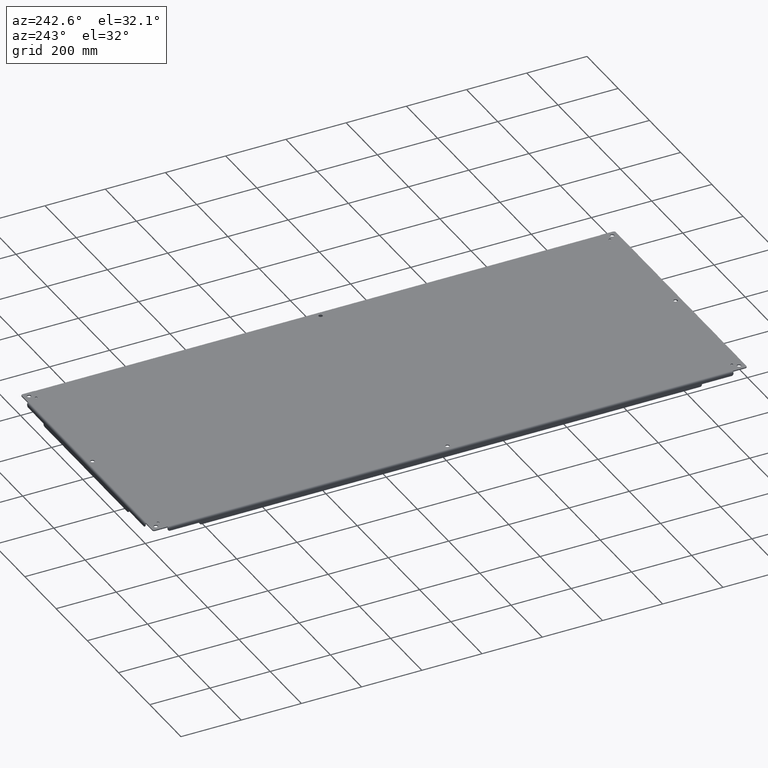
[diagram: clean part render]
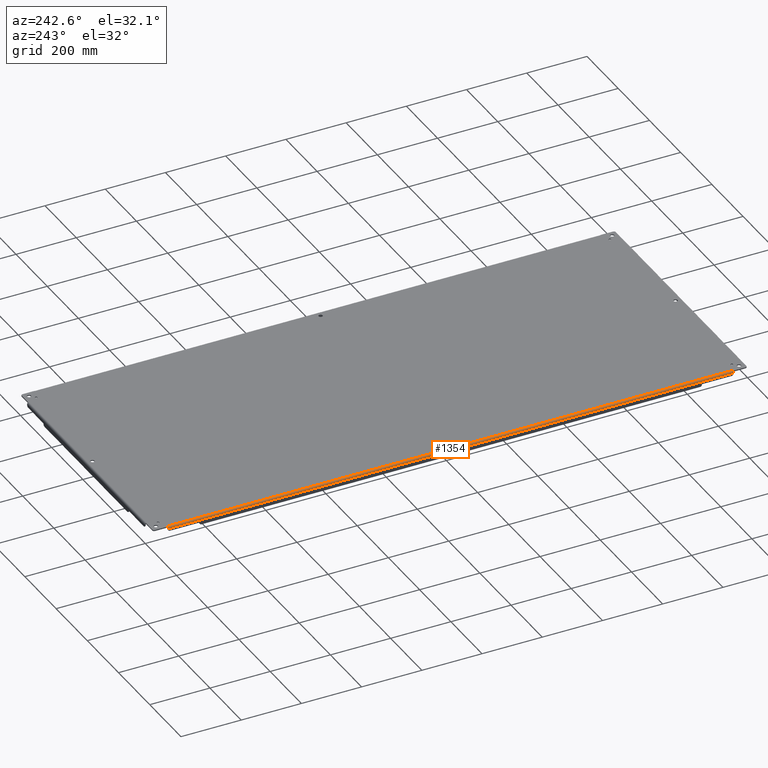
[diagram: same view with one face highlighted and labeled with its STEP entity id]
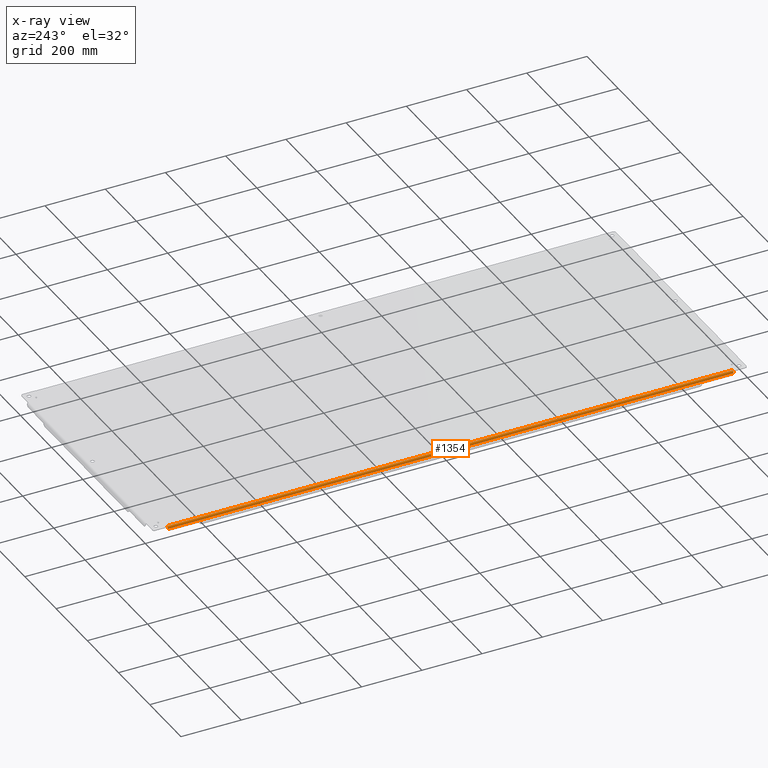
[diagram: x-ray of the same camera — body ghosted, the highlighted face saturated]
A machine part, auxiliary view. The second image highlights one B-rep face of the part: STEP entity #1354.
The next image is the same camera in x-ray: the body ghosted, the highlighted face saturated — about 0% of this face is hidden behind the body in this view.
In plain terms, the highlighted cylindrical surface (edge-blend (fillet) strip) has radius 6.0198 mm, axis along (0, 1, 0).
Its self-contained STEP definition (entity closure, byte-faithful):
#147 = CARTESIAN_POINT ( 'NONE',  ( -16.64752892643890192, -36.96875000000090949, -0.002344651641724854359 ) ) ;
#150 = CARTESIAN_POINT ( 'NONE',  ( -16.73629293880526347, 36.96875000000000000, -0.03668347244849572142 ) ) ;
#177 = CARTESIAN_POINT ( 'NONE',  ( -16.84375000000000000, -36.96875000000000000, -0.2370000000000000162 ) ) ;
#253 = CARTESIAN_POINT ( 'NONE',  ( -16.72430515075500068, -36.96874999999933209, -0.02986033724496465341 ) ) ;
#288 = VECTOR ( 'NONE', #3531, 39.37007874015748143 ) ;
#455 = B_SPLINE_CURVE_WITH_KNOTS ( 'NONE', 3,
 ( #811, #2070, #2763, #1150, #150, #470 ),
 .UNSPECIFIED., .F., .F.,
 ( 4, 2, 4 ),
 ( 0.0000000000000000000, 0.5000000000000000000, 1.000000000000000000 ),
 .UNSPECIFIED. ) ;
#470 = CARTESIAN_POINT ( 'NONE',  ( -16.75729026435067226, 36.96875000000117240, -0.05395184019243590146 ) ) ;
#493 = VERTEX_POINT ( 'NONE', #906 ) ;
#506 = EDGE_CURVE ( 'NONE', #861, #1278, #2819, .T. ) ;
#520 = AXIS2_PLACEMENT_3D ( 'NONE', #651, #1996, #1954 ) ;
#530 = CARTESIAN_POINT ( 'NONE',  ( -16.60675000000000168, -36.96875000000000000, -0.2369999999999999885 ) ) ;
#651 = CARTESIAN_POINT ( 'NONE',  ( -16.60675000000000168, -36.96875000000000000, -0.2369999999999999885 ) ) ;
#811 = CARTESIAN_POINT ( 'NONE',  ( -16.60674999999984536, 36.96875000000000000, 2.966581871966592333E-17 ) ) ;
#830 = VERTEX_POINT ( 'NONE', #177 ) ;
#835 = EDGE_LOOP ( 'NONE', ( #1843, #3974, #4073, #2575, #1029, #3998 ) ) ;
#861 = VERTEX_POINT ( 'NONE', #1579 ) ;
#906 = CARTESIAN_POINT ( 'NONE',  ( -16.84375000000000000, 36.96875000000000000, -0.2370000000000000162 ) ) ;
#997 = CYLINDRICAL_SURFACE ( 'NONE', #520, 0.2369999999999999885 ) ;
#1029 = ORIENTED_EDGE ( 'NONE', *, *, #2986, .T. ) ;
#1054 = EDGE_CURVE ( 'NONE', #861, #2807, #455, .T. ) ;
#1106 = AXIS2_PLACEMENT_3D ( 'NONE', #2270, #3198, #1926 ) ;
#1150 = CARTESIAN_POINT ( 'NONE',  ( -16.71230025366778094, 36.96875000000000000, -0.02306723449816455024 ) ) ;
#1169 = CARTESIAN_POINT ( 'NONE',  ( -16.68710358668163352, -36.96875000000252953, -0.01279170353365022966 ) ) ;
#1249 = EDGE_CURVE ( 'NONE', #830, #1413, #3837, .T. ) ;
#1278 = VERTEX_POINT ( 'NONE', #3463 ) ;
#1299 = LINE ( 'NONE', #2565, #2402 ) ;
#1354 = ADVANCED_FACE ( 'NONE', ( #2610 ), #997, .T. ) ;
#1377 = CARTESIAN_POINT ( 'NONE',  ( -16.75729026435098135, -36.96875000000189004, -0.05395184019268819964 ) ) ;
#1413 = VERTEX_POINT ( 'NONE', #1377 ) ;
#1543 = AXIS2_PLACEMENT_3D ( 'NONE', #530, #3763, #3505 ) ;
#1579 = CARTESIAN_POINT ( 'NONE',  ( -16.60674999999984536, 36.96875000000000000, 2.966581871966592333E-17 ) ) ;
#1843 = ORIENTED_EDGE ( 'NONE', *, *, #1249, .T. ) ;
#1926 = DIRECTION ( 'NONE',  ( 0.0000000000000000000, 0.0000000000000000000, 1.000000000000000000 ) ) ;
#1954 = DIRECTION ( 'NONE',  ( 0.0000000000000000000, 0.0000000000000000000, 1.000000000000000000 ) ) ;
#1987 = DIRECTION ( 'NONE',  ( -0.0000000000000000000, -1.000000000000000000, -0.0000000000000000000 ) ) ;
#1996 = DIRECTION ( 'NONE',  ( 0.0000000000000000000, 1.000000000000000000, 0.0000000000000000000 ) ) ;
#2070 = CARTESIAN_POINT ( 'NONE',  ( -16.63393610315209870, 36.96875000000000000, -7.203114827044442300E-18 ) ) ;
#2134 = CARTESIAN_POINT ( 'NONE',  ( -16.62034305157531833, -36.96874999999988631, -4.015869907092593191E-14 ) ) ;
#2270 = CARTESIAN_POINT ( 'NONE',  ( -16.60675000000000168, 36.96875000000000000, -0.2369999999999999885 ) ) ;
#2402 = VECTOR ( 'NONE', #1987, 39.37007874015748143 ) ;
#2565 = CARTESIAN_POINT ( 'NONE',  ( -16.84375000000000355, -36.96875000000000000, -0.2370000000000000162 ) ) ;
#2575 = ORIENTED_EDGE ( 'NONE', *, *, #1054, .T. ) ;
#2610 = FACE_OUTER_BOUND ( 'NONE', #835, .T. ) ;
#2763 = CARTESIAN_POINT ( 'NONE',  ( -16.66111588764061935, 36.96875000000000000, -0.004723366509577339202 ) ) ;
#2807 = VERTEX_POINT ( 'NONE', #3323 ) ;
#2819 = LINE ( 'NONE', #3216, #288 ) ;
#2924 = CARTESIAN_POINT ( 'NONE',  ( -16.75729026435098135, -36.96875000000189004, -0.05395184019268819964 ) ) ;
#2966 = EDGE_CURVE ( 'NONE', #493, #830, #1299, .T. ) ;
#2986 = EDGE_CURVE ( 'NONE', #2807, #493, #3814, .T. ) ;
#3169 = CARTESIAN_POINT ( 'NONE',  ( -16.74679160157656810, -36.96875000000446931, -0.04531765631994324334 ) ) ;
#3198 = DIRECTION ( 'NONE',  ( -0.0000000000000000000, -1.000000000000000000, -0.0000000000000000000 ) ) ;
#3216 = CARTESIAN_POINT ( 'NONE',  ( -16.60675000000000168, 0.0000000000000000000, 0.0000000000000000000 ) ) ;
#3323 = CARTESIAN_POINT ( 'NONE',  ( -16.75729026435067226, 36.96875000000117240, -0.05395184019243590146 ) ) ;
#3463 = CARTESIAN_POINT ( 'NONE',  ( -16.60674999999997326, -36.96875000000000000, 4.547918829767886618E-17 ) ) ;
#3482 = CARTESIAN_POINT ( 'NONE',  ( -16.60674999999997326, -36.96875000000000000, 4.547918829767886618E-17 ) ) ;
#3505 = DIRECTION ( 'NONE',  ( 0.0000000000000000000, 0.0000000000000000000, 1.000000000000000000 ) ) ;
#3531 = DIRECTION ( 'NONE',  ( 0.0000000000000000000, -1.000000000000000000, -0.0000000000000000000 ) ) ;
#3763 = DIRECTION ( 'NONE',  ( 0.0000000000000000000, 1.000000000000000000, 0.0000000000000000000 ) ) ;
#3814 = CIRCLE ( 'NONE', #1106, 0.2369999999999999885 ) ;
#3837 = CIRCLE ( 'NONE', #1543, 0.2369999999999999885 ) ;
#3908 = EDGE_CURVE ( 'NONE', #1278, #1413, #4181, .T. ) ;
#3974 = ORIENTED_EDGE ( 'NONE', *, *, #3908, .F. ) ;
#3998 = ORIENTED_EDGE ( 'NONE', *, *, #2966, .T. ) ;
#4073 = ORIENTED_EDGE ( 'NONE', *, *, #506, .F. ) ;
#4181 = B_SPLINE_CURVE_WITH_KNOTS ( 'NONE', 3,
 ( #3482, #2134, #147, #1169, #253, #3169, #2924 ),
 .UNSPECIFIED., .F., .F.,
 ( 4, 1, 1, 1, 4 ),
 ( 0.0000000000000000000, 0.2499999999915060722, 0.4999999999873165346, 0.7499999999831269415, 1.000000000000000000 ),
 .UNSPECIFIED. ) ;